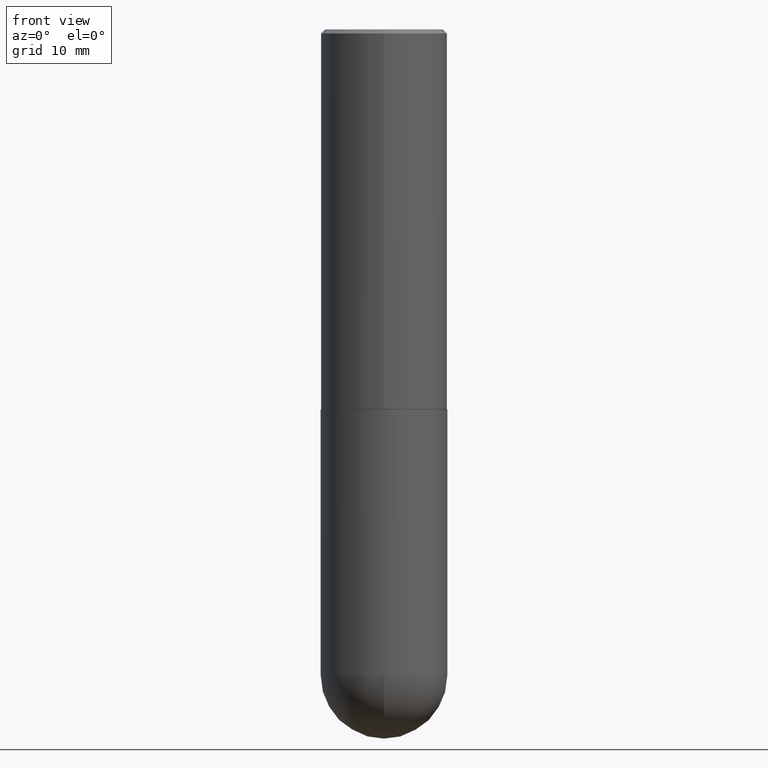
[diagram: clean part render]
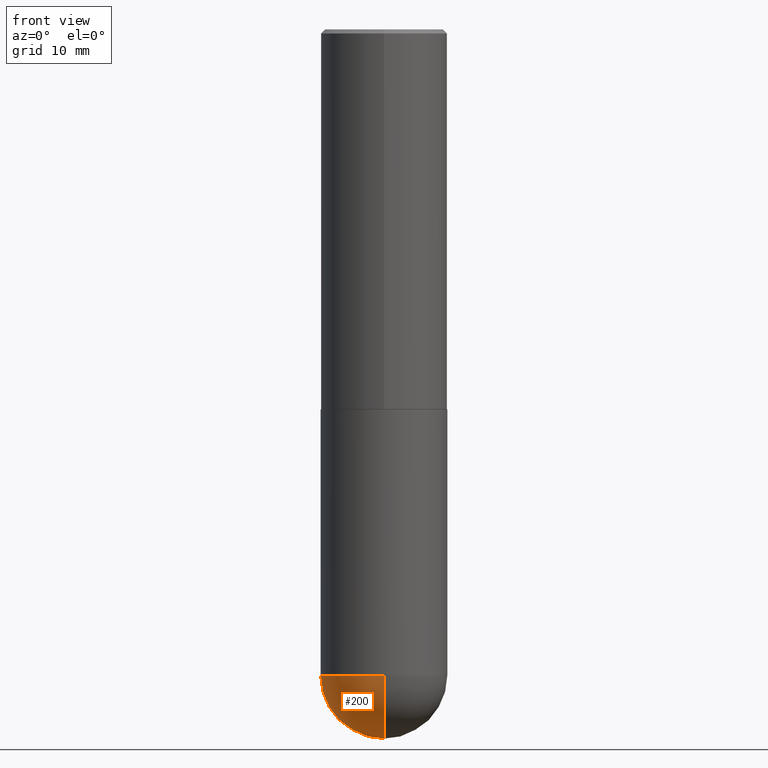
[diagram: same view with one face highlighted and labeled with its STEP entity id]
A machine part, front view. The second image highlights one B-rep face of the part: STEP entity #200.
In plain terms, the highlighted spherical surface has radius 7.9375 mm.
Its self-contained STEP definition (entity closure, byte-faithful):
#3 = SPHERICAL_SURFACE ( 'NONE', #271, 0.3125000000000002776 ) ;
#7 = AXIS2_PLACEMENT_3D ( 'NONE', #32, #113, #191 ) ;
#13 = VERTEX_POINT ( 'NONE', #301 ) ;
#21 = EDGE_CURVE ( 'NONE', #13, #166, #407, .T. ) ;
#32 = CARTESIAN_POINT ( 'NONE',  ( 7.463812041801236655E-29, -1.160327913570257494E-14, -3.187500000000000000 ) ) ;
#34 = DIRECTION ( 'NONE',  ( 1.000000000000000000, -6.982962677686269077E-15, 0.000000000000000000 ) ) ;
#37 = DIRECTION ( 'NONE',  ( 6.982962677686265922E-15, 1.000000000000000000, -3.496765431890253764E-15 ) ) ;
#56 = FACE_OUTER_BOUND ( 'NONE', #278, .T. ) ;
#59 = AXIS2_PLACEMENT_3D ( 'NONE', #305, #405, #365 ) ;
#62 = CARTESIAN_POINT ( 'NONE',  ( 7.463812041801236655E-29, -1.160327913570257494E-14, -3.187500000000000000 ) ) ;
#71 = VERTEX_POINT ( 'NONE', #120 ) ;
#108 = CIRCLE ( 'NONE', #59, 0.3125000000000000000 ) ;
#109 = ORIENTED_EDGE ( 'NONE', *, *, #21, .F. ) ;
#113 = DIRECTION ( 'NONE',  ( 1.000000000000000000, -6.982962677686265922E-15, 4.883557194083112340E-29 ) ) ;
#117 = CARTESIAN_POINT ( 'NONE',  ( 7.463812041801236655E-29, -1.160327913570257494E-14, -3.187500000000000000 ) ) ;
#120 = CARTESIAN_POINT ( 'NONE',  ( -2.220446049250237350E-15, -0.3125000000000114908, -3.187499999999998668 ) ) ;
#121 = AXIS2_PLACEMENT_3D ( 'NONE', #62, #345, #186 ) ;
#124 = DIRECTION ( 'NONE',  ( -1.000000000000000000, 6.982962677686265922E-15, -4.883557194083112901E-29 ) ) ;
#140 = EDGE_CURVE ( 'NONE', #276, #71, #379, .T. ) ;
#149 = EDGE_CURVE ( 'NONE', #276, #13, #179, .T. ) ;
#166 = VERTEX_POINT ( 'NONE', #249 ) ;
#179 = CIRCLE ( 'NONE', #7, 0.3125000000000002776 ) ;
#186 = DIRECTION ( 'NONE',  ( -7.105427357601000281E-15, -1.000000000000000000, 0.000000000000000000 ) ) ;
#191 = DIRECTION ( 'NONE',  ( 6.982962677686265922E-15, 1.000000000000000000, 0.000000000000000000 ) ) ;
#196 = CARTESIAN_POINT ( 'NONE',  ( 8.241383017002520278E-29, -1.267523194785438148E-14, -3.500000000000000444 ) ) ;
#200 = ADVANCED_FACE ( 'NONE', ( #56 ), #3, .T. ) ;
#222 = CARTESIAN_POINT ( 'NONE',  ( 7.794931819715121781E-29, -1.112909676756252622E-14, -3.187500000000000000 ) ) ;
#244 = AXIS2_PLACEMENT_3D ( 'NONE', #222, #313, #34 ) ;
#247 = ORIENTED_EDGE ( 'NONE', *, *, #140, .T. ) ;
#249 = CARTESIAN_POINT ( 'NONE',  ( -0.3125000000000000000, -6.617366089696400174E-15, -3.187500000000000000 ) ) ;
#271 = AXIS2_PLACEMENT_3D ( 'NONE', #117, #124, #37 ) ;
#276 = VERTEX_POINT ( 'NONE', #196 ) ;
#278 = EDGE_LOOP ( 'NONE', ( #306, #247, #408, #109 ) ) ;
#301 = CARTESIAN_POINT ( 'NONE',  ( 2.182175836777035261E-15, 0.3124999999999887867, -3.187500000000000888 ) ) ;
#305 = CARTESIAN_POINT ( 'NONE',  ( 7.794931819715121781E-29, -1.112909676756252622E-14, -3.187500000000000000 ) ) ;
#306 = ORIENTED_EDGE ( 'NONE', *, *, #149, .F. ) ;
#313 = DIRECTION ( 'NONE',  ( -2.445468806185136597E-29, 3.491481338843145583E-15, 1.000000000000000000 ) ) ;
#345 = DIRECTION ( 'NONE',  ( -1.000000000000000000, 7.105427357601001070E-15, -4.926315508542082329E-29 ) ) ;
#365 = DIRECTION ( 'NONE',  ( 1.000000000000000000, -6.982962677686269077E-15, 0.000000000000000000 ) ) ;
#376 = EDGE_CURVE ( 'NONE', #166, #71, #108, .T. ) ;
#379 = CIRCLE ( 'NONE', #121, 0.3125000000000002776 ) ;
#405 = DIRECTION ( 'NONE',  ( -2.445468806185136597E-29, 3.491481338843145583E-15, 1.000000000000000000 ) ) ;
#407 = CIRCLE ( 'NONE', #244, 0.3125000000000000000 ) ;
#408 = ORIENTED_EDGE ( 'NONE', *, *, #376, .F. ) ;